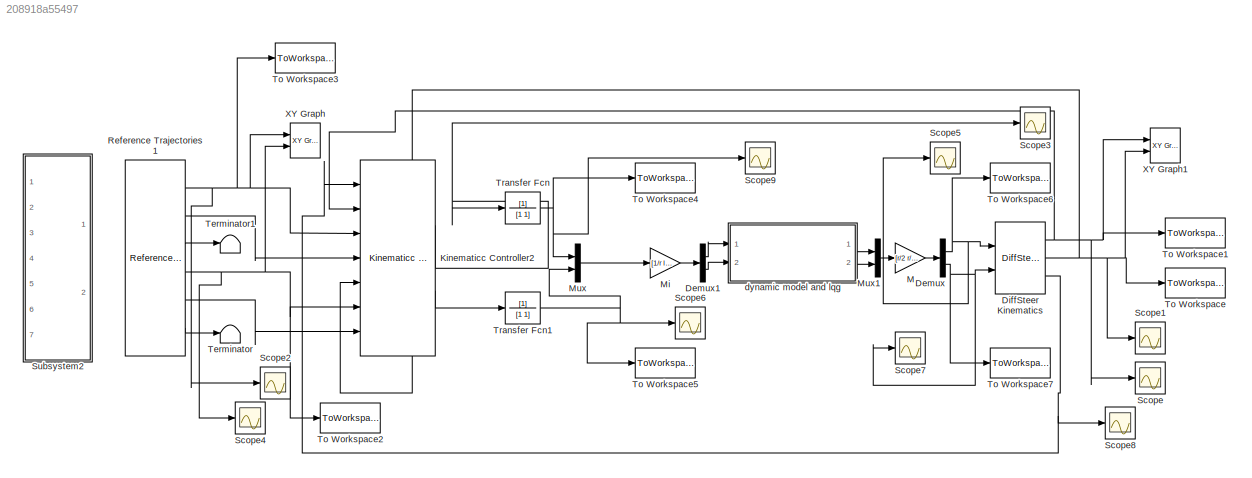
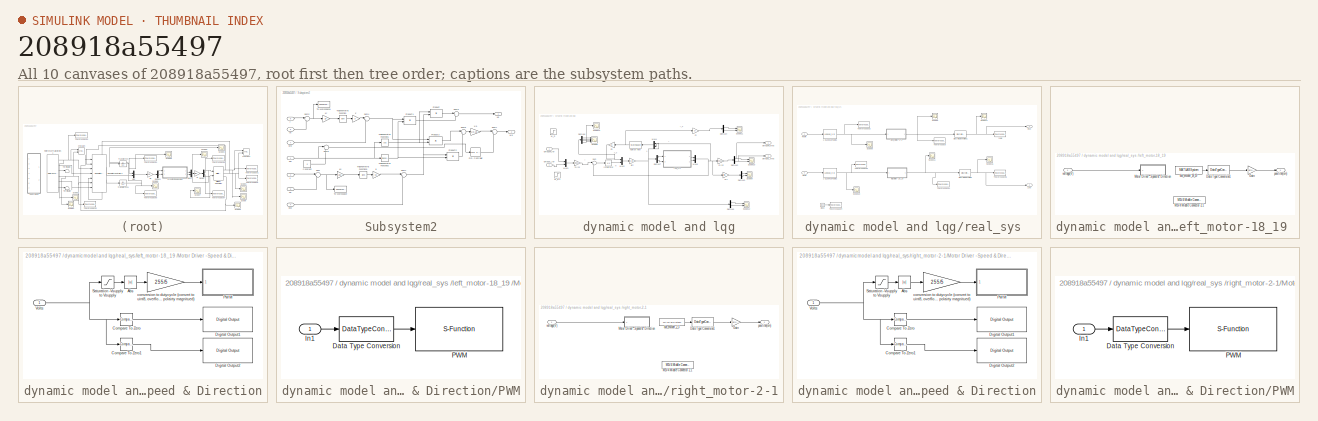
[diagram: thumbnail index - all 10 canvases of the model, root first then tree order]
MODEL slx_208918a55497
KIND model
CONFIG AbsTol = auto
CONFIG EnableMultiTasking = on
CONFIG FixedStep = 0.04
CONFIG MaxStep = auto
CONFIG MinStep = auto
CONFIG RelTol = 1e-3
CONFIG SampleTimeConstraint = Unconstrained
CONFIG Solver = FixedStepAuto
CONFIG SolverName = FixedStepAuto
CONFIG StartTime = 0.0
CONFIG StopTime = 100
BLOCK [Demux] Demux
  DisplayOption = bar
  Outputs = 2
  Ports = [1, 2]
BLOCK [Demux] Demux1
  DisplayOption = bar
  Outputs = 2
  Ports = [1, 2]
BLOCK [Reference] DiffSteer Kinematics  REF=DiffSteer_model/DiffSteer
Kinematics
  Ports = [2, 3]
  SourceBlock = DiffSteer_model/DiffSteer\nKinematics
BLOCK [Reference] Kinematicc Controller2  REF=Controllers/Kinematicc
Controller
  Ports = [7, 2]
  SourceBlock = Controllers/Kinematicc\nController
  SourceType = Kinematic Controller
BLOCK [Gain] M
  Gain = [r/2 r/2;r/l -r/l]
  Multiplication = Matrix(K*u)
  OutDataTypeStr = Inherit: Inherit via internal rule
  ParamDataTypeStr = Inherit: Inherit via internal rule
  SaturateOnIntegerOverflow = off
BLOCK [Gain] Mi
  Gain = [1/r  l/(2*r); 1/r  -l/(2*r)]
  Multiplication = Matrix(K*u)
  OutDataTypeStr = Inherit: Inherit via internal rule
  ParamDataTypeStr = Inherit: Inherit via internal rule
  SaturateOnIntegerOverflow = off
BLOCK [Mux] Mux
  DisplayOption = bar
  Inputs = 2
  Ports = [2, 1]
BLOCK [Mux] Mux1
  DisplayOption = bar
  Inputs = 2
  Ports = [2, 1]
BLOCK [Reference] Reference Trajectories1  REF=Controllers/Reference
Trajectories
  Ports = [0, 6]
  SourceBlock = Controllers/Reference\nTrajectories
  SourceType = Reference Trajectories
BLOCK [Scope] Scope
  NumInputPorts = 1
  Ports = [1]
  ScopeSpecificationString = Simulink.scopes.TimeScopeBlockCfg('CurrentConfiguration', extmgr.ConfigurationSet(extmgr.Configuration('Core','General UI',true),extmgr.Configuration('Core','Source UI',true),extmgr.Configuration('Sources','WiredSimulink',true,'DataLoggingVariableName','ScopeData9','DataLoggingLimitDataPoints',true,'DataLoggingMaxPoints','1000000000'),extmgr.Configuration('Visuals','Time Domain',true,'SerializedDi...<+1508ch>
BLOCK [Scope] Scope1
  NumInputPorts = 1
  Ports = [1]
  ScopeSpecificationString = Simulink.scopes.TimeScopeBlockCfg('CurrentConfiguration', extmgr.ConfigurationSet(extmgr.Configuration('Core','General UI',true),extmgr.Configuration('Core','Source UI',true),extmgr.Configuration('Sources','WiredSimulink',true,'DataLoggingVariableName','ScopeData2','DataLoggingLimitDataPoints',true,'DataLoggingMaxPoints','1000000000'),extmgr.Configuration('Visuals','Time Domain',true,'SerializedDi...<+1512ch>
BLOCK [Scope] Scope2
  NumInputPorts = 1
  Ports = [1]
  ScopeSpecificationString = Simulink.scopes.TimeScopeBlockCfg('CurrentConfiguration', extmgr.ConfigurationSet(extmgr.Configuration('Core','General UI',true),extmgr.Configuration('Core','Source UI',true),extmgr.Configuration('Sources','WiredSimulink',true,'DataLoggingVariableName','ScopeData3','DataLoggingLimitDataPoints',true,'DataLoggingMaxPoints','100000000000'),extmgr.Configuration('Visuals','Time Domain',true,'Serialized...<+1496ch>
BLOCK [Scope] Scope3
  NumInputPorts = 1
  Ports = [1]
  ScopeSpecificationString = Simulink.scopes.TimeScopeBlockCfg('CurrentConfiguration', extmgr.ConfigurationSet(extmgr.Configuration('Core','General UI',true),extmgr.Configuration('Core','Source UI',true),extmgr.Configuration('Sources','WiredSimulink',true,'DataLoggingVariableName','ScopeData4','DataLoggingLimitDataPoints',true,'DataLoggingMaxPoints','1000000'),extmgr.Configuration('Visuals','Time Domain',true,'SerializedDispl...<+1502ch>
BLOCK [Scope] Scope4
  NumInputPorts = 1
  Ports = [1]
  ScopeSpecificationString = Simulink.scopes.TimeScopeBlockCfg('CurrentConfiguration', extmgr.ConfigurationSet(extmgr.Configuration('Core','General UI',true),extmgr.Configuration('Core','Source UI',true),extmgr.Configuration('Sources','WiredSimulink',true,'DataLoggingVariableName','ScopeData5','DataLoggingLimitDataPoints',true,'DataLoggingMaxPoints','1000000000000'),extmgr.Configuration('Visuals','Time Domain',true,'Serialize...<+1490ch>
BLOCK [Scope] Scope5
  NumInputPorts = 1
  Ports = [1]
  ScopeSpecificationString = Simulink.scopes.TimeScopeBlockCfg('CurrentConfiguration', extmgr.ConfigurationSet(extmgr.Configuration('Core','General UI',true),extmgr.Configuration('Core','Source UI',true),extmgr.Configuration('Sources','WiredSimulink',true,'DataLoggingVariableName','ScopeData6','DataLoggingLimitDataPoints',true,'DataLoggingMaxPoints','100000000000'),extmgr.Configuration('Visuals','Time Domain',true,'Serialized...<+1490ch>
BLOCK [Scope] Scope6
  NumInputPorts = 1
  Ports = [1]
  ScopeSpecificationString = Simulink.scopes.TimeScopeBlockCfg('CurrentConfiguration', extmgr.ConfigurationSet(extmgr.Configuration('Core','General UI',true),extmgr.Configuration('Core','Source UI',true),extmgr.Configuration('Sources','WiredSimulink',true,'DataLoggingVariableName','ScopeData7','DataLoggingLimitDataPoints',true,'DataLoggingMaxPoints','100000000000'),extmgr.Configuration('Visuals','Time Domain',true,'Serialized...<+1498ch>
BLOCK [Scope] Scope7
  NumInputPorts = 1
  Ports = [1]
  ScopeSpecificationString = Simulink.scopes.TimeScopeBlockCfg('CurrentConfiguration', extmgr.ConfigurationSet(extmgr.Configuration('Core','General UI',true),extmgr.Configuration('Core','Source UI',true),extmgr.Configuration('Sources','WiredSimulink',true,'DataLoggingVariableName','ScopeData8','DataLoggingLimitDataPoints',true,'DataLoggingMaxPoints','100000000000'),extmgr.Configuration('Visuals','Time Domain',true,'Serialized...<+1493ch>
BLOCK [Scope] Scope8
  NumInputPorts = 1
  Ports = [1]
  ScopeSpecificationString = Simulink.scopes.TimeScopeBlockCfg('CurrentConfiguration', extmgr.ConfigurationSet(extmgr.Configuration('Core','General UI',true),extmgr.Configuration('Core','Source UI',true),extmgr.Configuration('Sources','WiredSimulink',true,'DataLoggingVariableName','ScopeData15','DataLoggingLimitDataPoints',true,'DataLoggingMaxPoints','1000000000'),extmgr.Configuration('Visuals','Time Domain',true,'SerializedD...<+1513ch>
BLOCK [Scope] Scope9
  NumInputPorts = 1
  Ports = [1]
  ScopeSpecificationString = Simulink.scopes.TimeScopeBlockCfg('CurrentConfiguration', extmgr.ConfigurationSet(extmgr.Configuration('Core','General UI',true),extmgr.Configuration('Core','Source UI',true),extmgr.Configuration('Sources','WiredSimulink',true,'DataLoggingVariableName','ScopeData1'),extmgr.Configuration('Visuals','Time Domain',true,'SerializedDisplays',{struct('MinYLimReal','0.09012','MaxYLimReal','0.34254','YLabe...<+1421ch>
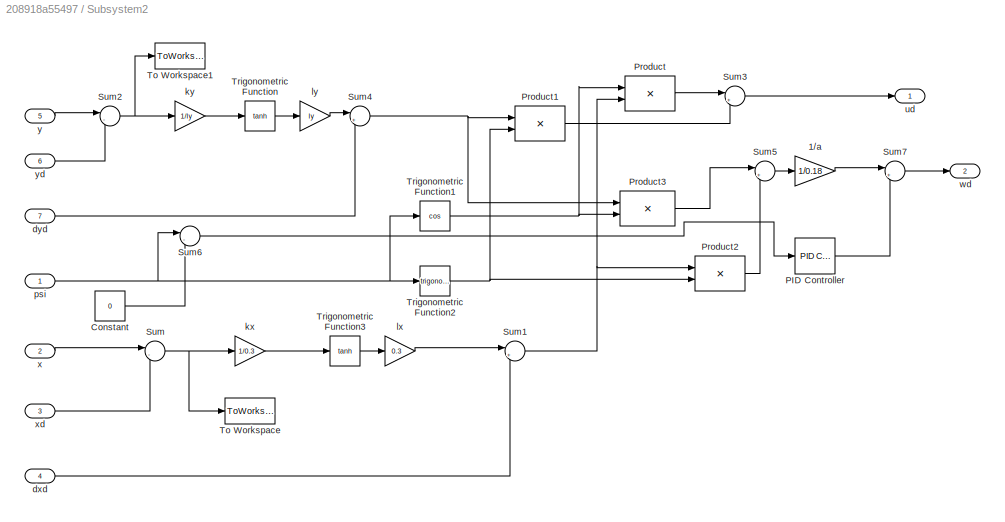
BLOCK [SubSystem] Subsystem2
  Commented = on
  Ports = [7, 2]
  RequestExecContextInheritance = off
  Variant = off
BLOCK [Gain] Subsystem2/1//a
  Gain = 1/0.18
BLOCK [Constant] Subsystem2/Constant
  Value = 0
BLOCK [Reference] Subsystem2/PID Controller  REF=simulink/Continuous/PID Controller
  Ports = [1, 1]
  SourceBlock = simulink/Continuous/PID Controller
  SourceType = PID 1dof
BLOCK [Product] Subsystem2/Product
  InputSameDT = off
  Ports = [2, 1]
  RndMeth = Floor
BLOCK [Product] Subsystem2/Product1
  InputSameDT = off
  Ports = [2, 1]
  RndMeth = Floor
BLOCK [Product] Subsystem2/Product2
  InputSameDT = off
  Ports = [2, 1]
  RndMeth = Floor
BLOCK [Product] Subsystem2/Product3
  InputSameDT = off
  Ports = [2, 1]
  RndMeth = Floor
BLOCK [Sum] Subsystem2/Sum
  IconShape = round
  InputSameDT = off
  Inputs = |-+
  OutDataTypeStr = Inherit: Inherit via internal rule
  Ports = [2, 1]
BLOCK [Sum] Subsystem2/Sum1
  IconShape = round
  InputSameDT = off
  Inputs = |++
  OutDataTypeStr = Inherit: Inherit via internal rule
  Ports = [2, 1]
BLOCK [Sum] Subsystem2/Sum2
  IconShape = round
  InputSameDT = off
  Inputs = |-+
  OutDataTypeStr = Inherit: Inherit via internal rule
  Ports = [2, 1]
BLOCK [Sum] Subsystem2/Sum3
  IconShape = round
  InputSameDT = off
  Inputs = |++
  OutDataTypeStr = Inherit: Inherit via internal rule
  Ports = [2, 1]
BLOCK [Sum] Subsystem2/Sum4
  IconShape = round
  InputSameDT = off
  Inputs = |++
  OutDataTypeStr = Inherit: Inherit via internal rule
  Ports = [2, 1]
BLOCK [Sum] Subsystem2/Sum5
  IconShape = round
  InputSameDT = off
  Inputs = |+-
  OutDataTypeStr = Inherit: Inherit via internal rule
  Ports = [2, 1]
BLOCK [Sum] Subsystem2/Sum6
  IconShape = round
  InputSameDT = off
  Inputs = |-+
  OutDataTypeStr = Inherit: Inherit via internal rule
  Ports = [2, 1]
BLOCK [Sum] Subsystem2/Sum7
  IconShape = round
  InputSameDT = off
  Inputs = |++
  OutDataTypeStr = Inherit: Inherit via internal rule
  Ports = [2, 1]
BLOCK [ToWorkspace] Subsystem2/To Workspace
  MaxDataPoints = inf
  Ports = [1]
  SampleTime = -1
  VariableName = erro_x1c
BLOCK [ToWorkspace] Subsystem2/To Workspace1
  MaxDataPoints = inf
  Ports = [1]
  SampleTime = -1
  VariableName = erro_y1c
BLOCK [Trigonometry] Subsystem2/Trigonometric Function
  Operator = tanh
  Ports = [1, 1]
BLOCK [Trigonometry] Subsystem2/Trigonometric Function1
  Operator = cos
  Ports = [1, 1]
BLOCK [Trigonometry] Subsystem2/Trigonometric Function2
  Ports = [1, 1]
BLOCK [Trigonometry] Subsystem2/Trigonometric Function3
  Operator = tanh
  Ports = [1, 1]
BLOCK [Inport] Subsystem2/dxd
  IconDisplay = Port number
  Port = 4
BLOCK [Inport] Subsystem2/dyd
  IconDisplay = Port number
  Port = 7
BLOCK [Gain] Subsystem2/kx
  Gain = 1/0.3
BLOCK [Gain] Subsystem2/ky
  Gain = 1/ly
BLOCK [Gain] Subsystem2/lx
  Gain = 0.3
BLOCK [Gain] Subsystem2/ly
  Gain = ly
BLOCK [Inport] Subsystem2/psi
  IconDisplay = Port number
BLOCK [Outport] Subsystem2/ud
  IconDisplay = Port number
BLOCK [Outport] Subsystem2/wd
  IconDisplay = Port number
  Port = 2
BLOCK [Inport] Subsystem2/x
  IconDisplay = Port number
  Port = 2
BLOCK [Inport] Subsystem2/xd
  IconDisplay = Port number
  Port = 3
BLOCK [Inport] Subsystem2/y
  IconDisplay = Port number
  Port = 5
BLOCK [Inport] Subsystem2/yd
  IconDisplay = Port number
  Port = 6
BLOCK [Terminator] Terminator
BLOCK [Terminator] Terminator1
BLOCK [ToWorkspace] To Workspace
  MaxDataPoints = inf
  Ports = [1]
  SampleTime = -1
  VariableName = y
BLOCK [ToWorkspace] To Workspace1
  MaxDataPoints = inf
  Ports = [1]
  SampleTime = -1
  VariableName = x
BLOCK [ToWorkspace] To Workspace2
  MaxDataPoints = inf
  Ports = [1]
  SampleTime = -1
  VariableName = yd
BLOCK [ToWorkspace] To Workspace3
  MaxDataPoints = inf
  Ports = [1]
  SampleTime = -1
  VariableName = xd
BLOCK [ToWorkspace] To Workspace4
  MaxDataPoints = inf
  Ports = [1]
  SampleTime = -1
  VariableName = ud
BLOCK [ToWorkspace] To Workspace5
  MaxDataPoints = inf
  Ports = [1]
  SampleTime = -1
  VariableName = wd
BLOCK [ToWorkspace] To Workspace6
  MaxDataPoints = inf
  Ports = [1]
  SampleTime = -1
  VariableName = v
BLOCK [ToWorkspace] To Workspace7
  MaxDataPoints = inf
  Ports = [1]
  SampleTime = -1
  VariableName = w
BLOCK [TransferFcn] Transfer Fcn
  Commented = through
  Denominator = [1 1]
BLOCK [TransferFcn] Transfer Fcn1
  Commented = through
  Denominator = [1 1]
BLOCK [Reference] XY Graph  REF=simulink/Sinks/XY Graph
  Commented = on
  Ports = [2]
  SourceBlock = simulink/Sinks/XY Graph
  SourceType = XY scope.
BLOCK [Reference] XY Graph1  REF=simulink/Sinks/XY Graph
  Ports = [2]
  SourceBlock = simulink/Sinks/XY Graph
  SourceType = XY scope.
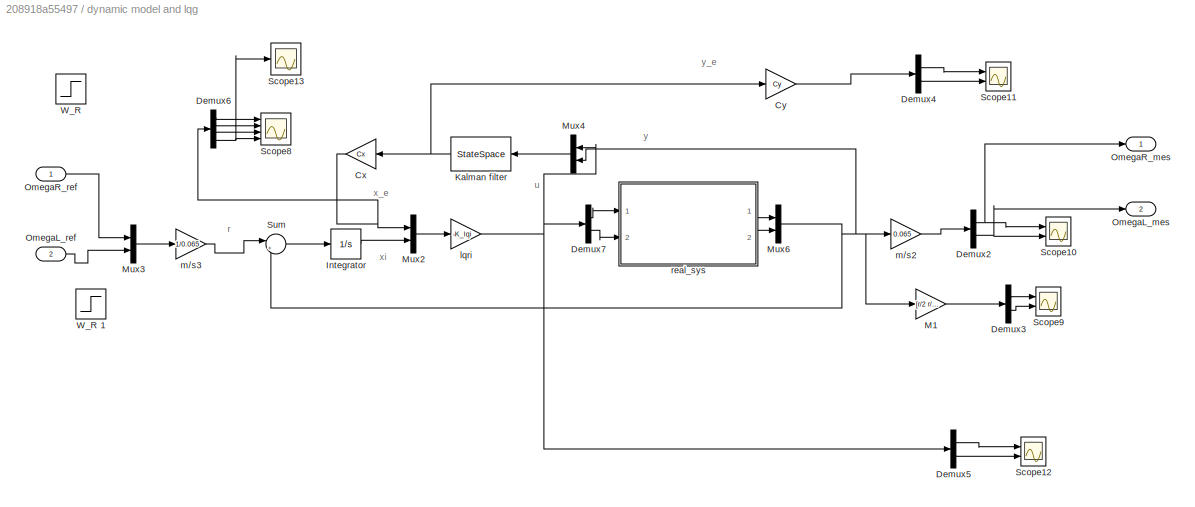
BLOCK [SubSystem] dynamic model and lqg
  Ports = [2, 2]
  RequestExecContextInheritance = off
  Variant = off
BLOCK [Gain] dynamic model and lqg/Cx
  Gain = Cx
  Multiplication = Matrix(K*u)
  OutDataTypeStr = Inherit: Inherit via internal rule
  ParamDataTypeStr = Inherit: Inherit via internal rule
  SaturateOnIntegerOverflow = off
BLOCK [Gain] dynamic model and lqg/Cy
  Gain = Cy
  Multiplication = Matrix(K*u)
  OutDataTypeStr = Inherit: Inherit via internal rule
  ParamDataTypeStr = Inherit: Inherit via internal rule
  SaturateOnIntegerOverflow = off
BLOCK [Demux] dynamic model and lqg/Demux2
  DisplayOption = bar
  Outputs = 2
  Ports = [1, 2]
BLOCK [Demux] dynamic model and lqg/Demux3
  DisplayOption = bar
  Outputs = 2
  Ports = [1, 2]
BLOCK [Demux] dynamic model and lqg/Demux4
  DisplayOption = bar
  Outputs = 2
  Ports = [1, 2]
BLOCK [Demux] dynamic model and lqg/Demux5
  DisplayOption = bar
  Outputs = 2
  Ports = [1, 2]
BLOCK [Demux] dynamic model and lqg/Demux6
  DisplayOption = bar
  Ports = [1, 4]
BLOCK [Demux] dynamic model and lqg/Demux7
  DisplayOption = bar
  Outputs = 2
  Ports = [1, 2]
BLOCK [Integrator] dynamic model and lqg/Integrator
  Ports = [1, 1]
BLOCK [StateSpace] dynamic model and lqg/Kalman filter
  A = An
  B = Bn
  C = Cn
  D = Dn
  Ports = [1, 1]
  X0 = 0
BLOCK [Gain] dynamic model and lqg/M1
  Gain = [r/2 r/2;r/l -r/l]
  Multiplication = Matrix(K*u)
  OutDataTypeStr = Inherit: Inherit via internal rule
  ParamDataTypeStr = Inherit: Inherit via internal rule
  SaturateOnIntegerOverflow = off
BLOCK [Mux] dynamic model and lqg/Mux2
  DisplayOption = bar
  Inputs = 2
  Ports = [2, 1]
BLOCK [Mux] dynamic model and lqg/Mux3
  DisplayOption = bar
  Inputs = 2
  Ports = [2, 1]
BLOCK [Mux] dynamic model and lqg/Mux4
  DisplayOption = bar
  Inputs = 2
  Ports = [2, 1]
BLOCK [Mux] dynamic model and lqg/Mux6
  DisplayOption = bar
  Inputs = 2
  Ports = [2, 1]
BLOCK [Outport] dynamic model and lqg/OmegaL_mes
  IconDisplay = Port number
  Port = 2
BLOCK [Inport] dynamic model and lqg/OmegaL_ref
  IconDisplay = Port number
  Port = 2
BLOCK [Outport] dynamic model and lqg/OmegaR_mes
  IconDisplay = Port number
BLOCK [Inport] dynamic model and lqg/OmegaR_ref
  IconDisplay = Port number
BLOCK [Scope] dynamic model and lqg/Scope10
  NumInputPorts = 2
  Ports = [2]
  ScopeSpecificationString = Simulink.scopes.TimeScopeBlockCfg('CurrentConfiguration', extmgr.ConfigurationSet(extmgr.Configuration('Core','General UI',true),extmgr.Configuration('Core','Source UI',true),extmgr.Configuration('Sources','WiredSimulink',true,'DataLoggingVariableName','ScopeData10','DataLoggingLimitDataPoints',true,'DataLoggingMaxPoints','100000000'),extmgr.Configuration('Visuals','Time Domain',true,'SerializedDi...<+1504ch>
BLOCK [Scope] dynamic model and lqg/Scope11
  NumInputPorts = 2
  Ports = [2]
  ScopeSpecificationString = Simulink.scopes.TimeScopeBlockCfg('CurrentConfiguration', extmgr.ConfigurationSet(extmgr.Configuration('Core','General UI',true),extmgr.Configuration('Core','Source UI',true),extmgr.Configuration('Sources','WiredSimulink',true,'DataLoggingLimitDataPoints',true,'DataLoggingMaxPoints','1000000','DataLoggingVariableName','ScopeData11'),extmgr.Configuration('Visuals','Time Domain',true,'SerializedDisp...<+1502ch>
BLOCK [Scope] dynamic model and lqg/Scope12
  Commented = on
  NumInputPorts = 2
  Ports = [2]
  ScopeSpecificationString = Simulink.scopes.TimeScopeBlockCfg('CurrentConfiguration', extmgr.ConfigurationSet(extmgr.Configuration('Core','General UI',true),extmgr.Configuration('Core','Source UI',true),extmgr.Configuration('Sources','WiredSimulink',true,'DataLoggingVariableName','ScopeData12','DataLoggingLimitDataPoints',true,'DataLoggingMaxPoints','1000000'),extmgr.Configuration('Visuals','Time Domain',true,'SerializedDisp...<+1504ch>
BLOCK [Scope] dynamic model and lqg/Scope13
  Commented = on
  NumInputPorts = 1
  Ports = [1]
  ScopeSpecificationString = C++SS(StrPVP('SaveName','ScopeData2'),StrPVP('SaveName','ScopeData13'),StrPVP('LimitDataPoints','on'),StrPVP('DataFormat','Array'),StrPVP('Decimation','1'),StrPVP('BlockParamSampleInput','off'))
BLOCK [Scope] dynamic model and lqg/Scope8
  NumInputPorts = 4
  Ports = [4]
  ScopeSpecificationString = Simulink.scopes.TimeScopeBlockCfg('CurrentConfiguration', extmgr.ConfigurationSet(extmgr.Configuration('Core','General UI',true),extmgr.Configuration('Core','Source UI',true),extmgr.Configuration('Sources','WiredSimulink',true,'DataLoggingVariableName','ScopeData1','DataLoggingLimitDataPoints',true,'DataLoggingMaxPoints','1000000'),extmgr.Configuration('Visuals','Time Domain',true,'SerializedDispl...<+1542ch>
BLOCK [Scope] dynamic model and lqg/Scope9
  Commented = on
  NumInputPorts = 2
  Ports = [2]
  ScopeSpecificationString = Simulink.scopes.TimeScopeBlockCfg('CurrentConfiguration', extmgr.ConfigurationSet(extmgr.Configuration('Core','General UI',true),extmgr.Configuration('Core','Source UI',true),extmgr.Configuration('Sources','WiredSimulink',true,'DataLoggingVariableName','ScopeData14','DataLoggingLimitDataPoints',true,'DataLoggingMaxPoints','1000000'),extmgr.Configuration('Visuals','Time Domain',true,'SerializedDisp...<+1517ch>
BLOCK [Sum] dynamic model and lqg/Sum
  IconShape = round
  InputSameDT = off
  Inputs = |+-
  OutDataTypeStr = Inherit: Inherit via internal rule
  Ports = [2, 1]
  SaturateOnIntegerOverflow = off
BLOCK [Step] dynamic model and lqg/W_R 
  After = 10
  Commented = on
  SampleTime = 0.02
BLOCK [Step] dynamic model and lqg/W_R 1
  After = 10
  Commented = on
  SampleTime = 0.02
BLOCK [Gain] dynamic model and lqg/lqri
  Gain = -K_lqi
  Multiplication = Matrix(K*u)
  OutDataTypeStr = Inherit: Inherit via internal rule
  ParamDataTypeStr = Inherit: Inherit via internal rule
  SaturateOnIntegerOverflow = off
BLOCK [Gain] dynamic model and lqg/m//s2
  Commented = through
  Gain = 0.065
  OutDataTypeStr = Inherit: Inherit via internal rule
  ParamDataTypeStr = Inherit: Inherit via internal rule
  SaturateOnIntegerOverflow = off
BLOCK [Gain] dynamic model and lqg/m//s3
  Commented = through
  Gain = 1/0.065
  OutDataTypeStr = Inherit: Inherit via internal rule
  ParamDataTypeStr = Inherit: Inherit via internal rule
  SaturateOnIntegerOverflow = off
BLOCK [SubSystem] dynamic model and lqg/real_sys 
  Ports = [2, 2]
  RequestExecContextInheritance = off
  Variant = off
BLOCK [Lookup_n-D] dynamic model and lqg/real_sys /1-D Lookup Table1
  BreakpointsForDimension1 = vol_r
  InternalRulePriority = Speed
  NumberOfTableDimensions = 1
  Ports = [1, 1]
  RndMeth = Simplest
  Table = u_51
BLOCK [Lookup_n-D] dynamic model and lqg/real_sys /1-D Lookup Table2
  BreakpointsForDimension1 = vol_l
  InternalRulePriority = Speed
  NumberOfTableDimensions = 1
  Ports = [1, 1]
  RndMeth = Simplest
  Table = u_51
BLOCK [Clock] dynamic model and lqg/real_sys /Clock
BLOCK [Reference] dynamic model and lqg/real_sys /Discrete Derivative  REF=simulink/Discrete/Discrete Derivative
  Ports = [1, 1]
  SourceBlock = simulink/Discrete/Discrete Derivative
  SourceType = Discrete Derivative
BLOCK [Reference] dynamic model and lqg/real_sys /Discrete Derivative1  REF=simulink/Discrete/Discrete Derivative
  Ports = [1, 1]
  SourceBlock = simulink/Discrete/Discrete Derivative
  SourceType = Discrete Derivative
BLOCK [Outport] dynamic model and lqg/real_sys /Lvel
  IconDisplay = Port number
  Port = 2
BLOCK [Outport] dynamic model and lqg/real_sys /Rvel
  IconDisplay = Port number
BLOCK [Inport] dynamic model and lqg/real_sys /RvolL 
  IconDisplay = Port number
  Port = 2
BLOCK [Inport] dynamic model and lqg/real_sys /RvolR
  IconDisplay = Port number
BLOCK [Scope] dynamic model and lqg/real_sys /Scope10
  NumInputPorts = 1
  Ports = [1]
  ScopeSpecificationString = Simulink.scopes.TimeScopeBlockCfg('CurrentConfiguration', extmgr.ConfigurationSet(extmgr.Configuration('Core','General UI',true),extmgr.Configuration('Core','Source UI',true),extmgr.Configuration('Sources','WiredSimulink',true,'DataLoggingVariableName','ScopeData8','DataLoggingLimitDataPoints',true,'DataLoggingSaveFormat','Array','DataLoggingDecimation','1','DataLoggingDecimateData',true,'DataLogg...<+1538ch>
BLOCK [Scope] dynamic model and lqg/real_sys /Scope11
  NumInputPorts = 1
  Ports = [1]
  ScopeSpecificationString = Simulink.scopes.TimeScopeBlockCfg('CurrentConfiguration', extmgr.ConfigurationSet(extmgr.Configuration('Core','General UI',true),extmgr.Configuration('Core','Source UI',true),extmgr.Configuration('Sources','WiredSimulink',true,'DataLoggingVariableName','ScopeData9','DataLoggingLimitDataPoints',true,'DataLoggingSaveFormat','Array','DataLoggingDecimation','1','DataLoggingDecimateData',true,'DataLogg...<+1553ch>
BLOCK [Scope] dynamic model and lqg/real_sys /Scope14
  NumInputPorts = 1
  Ports = [1]
  ScopeSpecificationString = Simulink.scopes.TimeScopeBlockCfg('CurrentConfiguration', extmgr.ConfigurationSet(extmgr.Configuration('Core','General UI',true),extmgr.Configuration('Core','Source UI',true),extmgr.Configuration('Sources','WiredSimulink',true,'DataLoggingVariableName','ScopeData12','DataLoggingLimitDataPoints',true,'DataLoggingMaxPoints','1000000'),extmgr.Configuration('Visuals','Time Domain',true,'SerializedDisp...<+1499ch>
BLOCK [Scope] dynamic model and lqg/real_sys /Scope15
  NumInputPorts = 1
  Ports = [1]
  ScopeSpecificationString = Simulink.scopes.TimeScopeBlockCfg('CurrentConfiguration', extmgr.ConfigurationSet(extmgr.Configuration('Core','General UI',true),extmgr.Configuration('Core','Source UI',true),extmgr.Configuration('Sources','WiredSimulink',true,'DataLoggingVariableName','ScopeData13','DataLoggingLimitDataPoints',true,'DataLoggingMaxPoints','1000000'),extmgr.Configuration('Visuals','Time Domain',true,'SerializedDisp...<+1471ch>
BLOCK [Scope] dynamic model and lqg/real_sys /Scope8
  NumInputPorts = 1
  Ports = [1]
  ScopeSpecificationString = Simulink.scopes.TimeScopeBlockCfg('CurrentConfiguration', extmgr.ConfigurationSet(extmgr.Configuration('Core','General UI',true),extmgr.Configuration('Core','Source UI',true),extmgr.Configuration('Sources','WiredSimulink',true,'DataLoggingVariableName','ScopeData16','DataLoggingLimitDataPoints',true,'DataLoggingSaveFormat','Array','DataLoggingDecimation','1','DataLoggingDecimateData',true,'DataLog...<+1583ch>
BLOCK [Scope] dynamic model and lqg/real_sys /Scope9
  NumInputPorts = 1
  Ports = [1]
  ScopeSpecificationString = Simulink.scopes.TimeScopeBlockCfg('CurrentConfiguration', extmgr.ConfigurationSet(extmgr.Configuration('Core','General UI',true),extmgr.Configuration('Core','Source UI',true),extmgr.Configuration('Sources','WiredSimulink',true,'DataLoggingVariableName','ScopeData17','DataLoggingLimitDataPoints',true,'DataLoggingMaxPoints','1000000'),extmgr.Configuration('Visuals','Time Domain',true,'SerializedDisp...<+1504ch>
BLOCK [ToWorkspace] dynamic model and lqg/real_sys /To Workspace
  FixptAsFi = on
  MaxDataPoints = inf
  Ports = [1]
  SampleTime = -1
  Save2DSignal = 2-D array (concatenate along first dimension)
  VariableName = pos
BLOCK [ToWorkspace] dynamic model and lqg/real_sys /To Workspace1
  FixptAsFi = on
  MaxDataPoints = inf
  Ports = [1]
  SampleTime = -1
  Save2DSignal = 2-D array (concatenate along first dimension)
  VariableName = pos1
BLOCK [ToWorkspace] dynamic model and lqg/real_sys /To Workspace2
  FixptAsFi = on
  MaxDataPoints = inf
  Ports = [1]
  SampleTime = -1
  Save2DSignal = 2-D array (concatenate along first dimension)
  VariableName = u
BLOCK [ToWorkspace] dynamic model and lqg/real_sys /To Workspace3
  FixptAsFi = on
  MaxDataPoints = inf
  Ports = [1]
  SampleTime = -1
  Save2DSignal = 2-D array (concatenate along first dimension)
  VariableName = u1
BLOCK [ToWorkspace] dynamic model and lqg/real_sys /To Workspace4
  FixptAsFi = on
  MaxDataPoints = inf
  Ports = [1]
  SampleTime = -1
  Save2DSignal = 2-D array (concatenate along first dimension)
  VariableName = t
BLOCK [ToWorkspace] dynamic model and lqg/real_sys /To Workspace6
  FixptAsFi = on
  MaxDataPoints = inf
  Ports = [1]
  SampleTime = -1
  Save2DSignal = 2-D array (concatenate along first dimension)
  VariableName = vel1
BLOCK [SubSystem] dynamic model and lqg/real_sys /left_motor-18_19 
  Ports = [1, 1]
  RequestExecContextInheritance = off
  Variant = off
BLOCK [DataTypeConversion] dynamic model and lqg/real_sys /left_motor-18_19 /Data Type Conversion1
  RndMeth = Floor
  SaturateOnIntegerOverflow = off
BLOCK [Gain] dynamic model and lqg/real_sys /left_motor-18_19 /Gain
  Gain = (pi*2)/(2300)
  OutDataTypeStr = Inherit: Inherit via internal rule
  ParamDataTypeStr = Inherit: Inherit via internal rule
  SaturateOnIntegerOverflow = off
BLOCK [Reference] dynamic model and lqg/real_sys /left_motor-18_19 /M1V4 Middle Connector 2,1  REF=MinSegLibrary_M1V4/M1V4 Middle Connector 2,3
  Commented = on
  Ports = [0, 1]
  SourceBlock = MinSegLibrary_M1V4/M1V4 Middle Connector 2,3
  SourceType = Encoder_arduino
BLOCK [SubSystem] dynamic model and lqg/real_sys /left_motor-18_19 /Motor Driver -Speed & Direction
  AncestorBlock = RASPlib/Motor Driver -Speed & Direction
  Ports = [1]
  RequestExecContextInheritance = off
  Variant = off
BLOCK [Abs] dynamic model and lqg/real_sys /left_motor-18_19 /Motor Driver -Speed & Direction/Abs
  SaturateOnIntegerOverflow = off
BLOCK [Reference] dynamic model and lqg/real_sys /left_motor-18_19 /Motor Driver -Speed & Direction/Compare To Zero  REF=simulink/Logic and Bit
Operations/Compare
To Zero
  Ports = [1, 1]
  SourceBlock = simulink/Logic and Bit\nOperations/Compare\nTo Zero
  SourceType = Compare To Zero
BLOCK [Reference] dynamic model and lqg/real_sys /left_motor-18_19 /Motor Driver -Speed & Direction/Compare To Zero1  REF=simulink/Logic and Bit
Operations/Compare
To Zero
  Ports = [1, 1]
  SourceBlock = simulink/Logic and Bit\nOperations/Compare\nTo Zero
  SourceType = Compare To Zero
BLOCK [Reference] dynamic model and lqg/real_sys /left_motor-18_19 /Motor Driver -Speed & Direction/Digital Output1  REF=arduinolib/Digital Output
  Ports = [1]
  SourceBlock = arduinolib/Digital Output
  SourceType = Arduino Digital Output
BLOCK [Reference] dynamic model and lqg/real_sys /left_motor-18_19 /Motor Driver -Speed & Direction/Digital Output2  REF=arduinolib/Digital Output
  Ports = [1]
  SourceBlock = arduinolib/Digital Output
  SourceType = Arduino Digital Output
BLOCK [SubSystem] dynamic model and lqg/real_sys /left_motor-18_19 /Motor Driver -Speed & Direction/PWM
  AncestorBlock = arduinolib/PWM
  InitFcn = codertarget.arduinobase.blocks.arduinoBlockInitFcnCallback(gcbh);
  Ports = [1]
  RequestExecContextInheritance = off
  Variant = off
BLOCK [DataTypeConversion] dynamic model and lqg/real_sys /left_motor-18_19 /Motor Driver -Speed & Direction/PWM/Data Type Conversion
  OutDataTypeStr = uint8
  RndMeth = Floor
BLOCK [Inport] dynamic model and lqg/real_sys /left_motor-18_19 /Motor Driver -Speed & Direction/PWM/In1
  IconDisplay = Port number
BLOCK [S-Function] dynamic model and lqg/real_sys /left_motor-18_19 /Motor Driver -Speed & Direction/PWM/PWM
  EnableBusSupport = off
  FunctionName = arduinoanalogoutput_sfcn
  Parameters = pinNumber
  Ports = [1]
  SFcnIsStateOwnerBlock = off
  SFunctionDeploymentMode = off
BLOCK [Saturate] dynamic model and lqg/real_sys /left_motor-18_19 /Motor Driver -Speed & Direction/Saturation -Vsupply to Vsupply
  InputPortMap = u0
  LowerLimit = -5
  OutDataTypeStr = single
  Ports = [1, 1]
  UpperLimit = 5
BLOCK [Inport] dynamic model and lqg/real_sys /left_motor-18_19 /Motor Driver -Speed & Direction/Volts
  IconDisplay = Port number
BLOCK [Gain] dynamic model and lqg/real_sys /left_motor-18_19 /Motor Driver -Speed & Direction/conversion to dutycycle (convert to uint8, overflow will provide reverse polairty magnitued)
  Gain = 255/5
  OutDataTypeStr = uint8
  ParamDataTypeStr = Inherit: Inherit via internal rule
  SaturateOnIntegerOverflow = off
BLOCK [MATLABSystem] dynamic model and lqg/real_sys /left_motor-18_19 /due_encoder_18_19 
  Encoder = 1
  MaskDisplay = disp('soEncoder');\nport_label('output',1,'y');
  MaskType = Encoder_arduino_Due_18_19
  PWMFSelect = 1
  PWMTimer = -1
  PinA = 18
  PinB = 19
  Ports = [0, 1]
  SampleTime = -1
  System = Encoder_arduino_Due_18_19
BLOCK [Outport] dynamic model and lqg/real_sys /left_motor-18_19 /position(cm)
  IconDisplay = Port number
BLOCK [Inport] dynamic model and lqg/real_sys /left_motor-18_19 /voltage(V)
  IconDisplay = Port number
BLOCK [ToWorkspace] dynamic model and lqg/real_sys /rad//s
  FixptAsFi = on
  MaxDataPoints = inf
  Ports = [1]
  SampleTime = -1
  Save2DSignal = 2-D array (concatenate along first dimension)
  VariableName = vel
BLOCK [SubSystem] dynamic model and lqg/real_sys /right_motor-2-1
  Ports = [1, 1]
  RequestExecContextInheritance = off
  Variant = off
BLOCK [DataTypeConversion] dynamic model and lqg/real_sys /right_motor-2-1/Data Type Conversion1
  RndMeth = Floor
  SaturateOnIntegerOverflow = off
BLOCK [Gain] dynamic model and lqg/real_sys /right_motor-2-1/Gain
  Gain = (pi*2)/(2300)
  OutDataTypeStr = Inherit: Inherit via internal rule
  ParamDataTypeStr = Inherit: Inherit via internal rule
  SaturateOnIntegerOverflow = off
BLOCK [Reference] dynamic model and lqg/real_sys /right_motor-2-1/M1V4 Middle Connector 2,1  REF=MinSegLibrary_M1V4/M1V4 Middle Connector 2,3
  Commented = on
  Ports = [0, 1]
  SourceBlock = MinSegLibrary_M1V4/M1V4 Middle Connector 2,3
  SourceType = Encoder_arduino
BLOCK [SubSystem] dynamic model and lqg/real_sys /right_motor-2-1/Motor Driver -Speed & Direction
  AncestorBlock = RASPlib/Motor Driver -Speed & Direction
  Ports = [1]
  RequestExecContextInheritance = off
  Variant = off
BLOCK [Abs] dynamic model and lqg/real_sys /right_motor-2-1/Motor Driver -Speed & Direction/Abs
  SaturateOnIntegerOverflow = off
BLOCK [Reference] dynamic model and lqg/real_sys /right_motor-2-1/Motor Driver -Speed & Direction/Compare To Zero  REF=simulink/Logic and Bit
Operations/Compare
To Zero
  Ports = [1, 1]
  SourceBlock = simulink/Logic and Bit\nOperations/Compare\nTo Zero
  SourceType = Compare To Zero
BLOCK [Reference] dynamic model and lqg/real_sys /right_motor-2-1/Motor Driver -Speed & Direction/Compare To Zero1  REF=simulink/Logic and Bit
Operations/Compare
To Zero
  Ports = [1, 1]
  SourceBlock = simulink/Logic and Bit\nOperations/Compare\nTo Zero
  SourceType = Compare To Zero
BLOCK [Reference] dynamic model and lqg/real_sys /right_motor-2-1/Motor Driver -Speed & Direction/Digital Output1  REF=arduinolib/Digital Output
  Ports = [1]
  SourceBlock = arduinolib/Digital Output
  SourceType = Arduino Digital Output
BLOCK [Reference] dynamic model and lqg/real_sys /right_motor-2-1/Motor Driver -Speed & Direction/Digital Output2  REF=arduinolib/Digital Output
  Ports = [1]
  SourceBlock = arduinolib/Digital Output
  SourceType = Arduino Digital Output
BLOCK [SubSystem] dynamic model and lqg/real_sys /right_motor-2-1/Motor Driver -Speed & Direction/PWM
  AncestorBlock = arduinolib/PWM
  InitFcn = codertarget.arduinobase.blocks.arduinoBlockInitFcnCallback(gcbh);
  Ports = [1]
  RequestExecContextInheritance = off
  Variant = off
BLOCK [DataTypeConversion] dynamic model and lqg/real_sys /right_motor-2-1/Motor Driver -Speed & Direction/PWM/Data Type Conversion
  OutDataTypeStr = uint8
  RndMeth = Floor
BLOCK [Inport] dynamic model and lqg/real_sys /right_motor-2-1/Motor Driver -Speed & Direction/PWM/In1
  IconDisplay = Port number
BLOCK [S-Function] dynamic model and lqg/real_sys /right_motor-2-1/Motor Driver -Speed & Direction/PWM/PWM
  EnableBusSupport = off
  FunctionName = arduinoanalogoutput_sfcn
  Parameters = pinNumber
  Ports = [1]
  SFcnIsStateOwnerBlock = off
  SFunctionDeploymentMode = off
BLOCK [Saturate] dynamic model and lqg/real_sys /right_motor-2-1/Motor Driver -Speed & Direction/Saturation -Vsupply to Vsupply
  InputPortMap = u0
  LowerLimit = -5
  OutDataTypeStr = single
  Ports = [1, 1]
  UpperLimit = 5
BLOCK [Inport] dynamic model and lqg/real_sys /right_motor-2-1/Motor Driver -Speed & Direction/Volts
  IconDisplay = Port number
BLOCK [Gain] dynamic model and lqg/real_sys /right_motor-2-1/Motor Driver -Speed & Direction/conversion to dutycycle (convert to uint8, overflow will provide reverse polairty magnitued)
  Gain = 255/5
  OutDataTypeStr = uint8
  ParamDataTypeStr = Inherit: Inherit via internal rule
  SaturateOnIntegerOverflow = off
BLOCK [MATLABSystem] dynamic model and lqg/real_sys /right_motor-2-1/due_encoder_2_3
  Encoder = 0
  MaskDisplay = disp('soEncoder');\nport_label('output',1,'y');
  MaskType = Encoder_arduino_Due_2_3
  PWMFSelect = 1
  PWMTimer = -1
  PinA = 2
  PinB = 3
  Ports = [0, 1]
  SampleTime = -1
  System = Encoder_arduino_Due_2_3
BLOCK [Outport] dynamic model and lqg/real_sys /right_motor-2-1/position(cm)
  IconDisplay = Port number
BLOCK [Inport] dynamic model and lqg/real_sys /right_motor-2-1/voltage(V)
  IconDisplay = Port number
ANNOTATION dynamic model and lqg: r
ANNOTATION dynamic model and lqg: u
ANNOTATION dynamic model and lqg: x_e
ANNOTATION dynamic model and lqg: xi
ANNOTATION dynamic model and lqg: y
ANNOTATION dynamic model and lqg: y_e
LINE Demux1:1 -> dynamic model and lqg:1
LINE Demux1:2 -> dynamic model and lqg:2
NET Demux:1 -> DiffSteer Kinematics:1, Scope5:1, To Workspace6:1
NET Demux:2 -> DiffSteer Kinematics:2, Scope7:1, To Workspace7:1
NET DiffSteer Kinematics:1 -> Kinematicc Controller2:2, Scope:1, To Workspace1:1, XY Graph1:1
NET DiffSteer Kinematics:2 -> Kinematicc Controller2:5, Scope1:1, To Workspace:1, XY Graph1:2
NET DiffSteer Kinematics:3 -> Kinematicc Controller2:1, Scope8:1
NET Kinematicc Controller2:1 -> Scope3:1, Transfer Fcn:1
LINE Kinematicc Controller2:2 -> Transfer Fcn1:1
LINE M:1 -> Demux:1
LINE Mi:1 -> Demux1:1
LINE Mux1:1 -> M:1
LINE Mux:1 -> Mi:1
NET Reference Trajectories1:1 -> Kinematicc Controller2:3, Scope2:1, To Workspace3:1, XY Graph:1
LINE Reference Trajectories1:2 -> Kinematicc Controller2:4
LINE Reference Trajectories1:3 -> Terminator1:1
NET Reference Trajectories1:4 -> Kinematicc Controller2:6, Scope4:1, To Workspace2:1, XY Graph:2
LINE Reference Trajectories1:5 -> Kinematicc Controller2:7
LINE Reference Trajectories1:6 -> Terminator:1
LINE Subsystem2/1//a:1 -> Subsystem2/Sum7:1
LINE Subsystem2/Constant:1 -> Subsystem2/Sum6:2
LINE Subsystem2/PID Controller:1 -> Subsystem2/Sum7:2
LINE Subsystem2/Product1:1 -> Subsystem2/Sum3:2
LINE Subsystem2/Product2:1 -> Subsystem2/Sum5:2
LINE Subsystem2/Product3:1 -> Subsystem2/Sum5:1
LINE Subsystem2/Product:1 -> Subsystem2/Sum3:1
NET Subsystem2/Sum1:1 -> Subsystem2/Product2:1, Subsystem2/Product:2
NET Subsystem2/Sum2:1 -> Subsystem2/To Workspace1:1, Subsystem2/ky:1
LINE Subsystem2/Sum3:1 -> Subsystem2/ud:1
NET Subsystem2/Sum4:1 -> Subsystem2/Product1:1, Subsystem2/Product3:1
LINE Subsystem2/Sum5:1 -> Subsystem2/1//a:1
LINE Subsystem2/Sum6:1 -> Subsystem2/PID Controller:1
LINE Subsystem2/Sum7:1 -> Subsystem2/wd:1
NET Subsystem2/Sum:1 -> Subsystem2/To Workspace:1, Subsystem2/kx:1
NET Subsystem2/Trigonometric Function1:1 -> Subsystem2/Product3:2, Subsystem2/Product:1
NET Subsystem2/Trigonometric Function2:1 -> Subsystem2/Product1:2, Subsystem2/Product2:2
LINE Subsystem2/Trigonometric Function3:1 -> Subsystem2/lx:1
LINE Subsystem2/Trigonometric Function:1 -> Subsystem2/ly:1
LINE Subsystem2/dxd:1 -> Subsystem2/Sum1:2
LINE Subsystem2/dyd:1 -> Subsystem2/Sum4:2
LINE Subsystem2/kx:1 -> Subsystem2/Trigonometric Function3:1
LINE Subsystem2/ky:1 -> Subsystem2/Trigonometric Function:1
LINE Subsystem2/lx:1 -> Subsystem2/Sum1:1
LINE Subsystem2/ly:1 -> Subsystem2/Sum4:1
NET Subsystem2/psi:1 -> Subsystem2/Sum6:1, Subsystem2/Trigonometric Function1:1, Subsystem2/Trigonometric Function2:1
LINE Subsystem2/x:1 -> Subsystem2/Sum:1
LINE Subsystem2/xd:1 -> Subsystem2/Sum:2
LINE Subsystem2/y:1 -> Subsystem2/Sum2:1
LINE Subsystem2/yd:1 -> Subsystem2/Sum2:2
NET Transfer Fcn1:1 -> Mux:2, Scope6:1, To Workspace5:1
NET Transfer Fcn:1 -> Mux:1, Scope9:1, To Workspace4:1
NET dynamic model and lqg/Cx:1 -> dynamic model and lqg/Demux6:1, dynamic model and lqg/Mux2:1
LINE dynamic model and lqg/Cy:1 -> dynamic model and lqg/Demux4:1
NET dynamic model and lqg/Demux2:1 -> dynamic model and lqg/OmegaR_mes:1, dynamic model and lqg/Scope10:1
NET dynamic model and lqg/Demux2:2 -> dynamic model and lqg/OmegaL_mes:1, dynamic model and lqg/Scope10:2
LINE dynamic model and lqg/Demux3:1 -> dynamic model and lqg/Scope9:1
LINE dynamic model and lqg/Demux3:2 -> dynamic model and lqg/Scope9:2
LINE dynamic model and lqg/Demux4:1 -> dynamic model and lqg/Scope11:1
LINE dynamic model and lqg/Demux4:2 -> dynamic model and lqg/Scope11:2
LINE dynamic model and lqg/Demux5:1 -> dynamic model and lqg/Scope12:1
LINE dynamic model and lqg/Demux5:2 -> dynamic model and lqg/Scope12:2
LINE dynamic model and lqg/Demux6:1 -> dynamic model and lqg/Scope8:1
LINE dynamic model and lqg/Demux6:2 -> dynamic model and lqg/Scope8:2
LINE dynamic model and lqg/Demux6:3 -> dynamic model and lqg/Scope8:3
NET dynamic model and lqg/Demux6:4 -> dynamic model and lqg/Scope13:1, dynamic model and lqg/Scope8:4
LINE dynamic model and lqg/Demux7:1 -> dynamic model and lqg/real_sys :1
LINE dynamic model and lqg/Demux7:2 -> dynamic model and lqg/real_sys :2
LINE dynamic model and lqg/Integrator:1 -> dynamic model and lqg/Mux2:2
NET dynamic model and lqg/Kalman filter:1 -> dynamic model and lqg/Cx:1, dynamic model and lqg/Cy:1
LINE dynamic model and lqg/M1:1 -> dynamic model and lqg/Demux3:1
LINE dynamic model and lqg/Mux2:1 -> dynamic model and lqg/lqri:1
LINE dynamic model and lqg/Mux3:1 -> dynamic model and lqg/m//s3:1
LINE dynamic model and lqg/Mux4:1 -> dynamic model and lqg/Kalman filter:1
NET dynamic model and lqg/Mux6:1 -> dynamic model and lqg/M1:1, dynamic model and lqg/Mux4:2, dynamic model and lqg/Sum:2, dynamic model and lqg/m//s2:1
LINE dynamic model and lqg/OmegaL_ref:1 -> dynamic model and lqg/Mux3:2
LINE dynamic model and lqg/OmegaR_ref:1 -> dynamic model and lqg/Mux3:1
LINE dynamic model and lqg/Sum:1 -> dynamic model and lqg/Integrator:1
NET dynamic model and lqg/lqri:1 -> dynamic model and lqg/Demux5:1, dynamic model and lqg/Demux7:1, dynamic model and lqg/Mux4:1
LINE dynamic model and lqg/m//s2:1 -> dynamic model and lqg/Demux2:1
LINE dynamic model and lqg/m//s3:1 -> dynamic model and lqg/Sum:1
NET dynamic model and lqg/real_sys /1-D Lookup Table1:1 -> dynamic model and lqg/real_sys /Scope8:1, dynamic model and lqg/real_sys /To Workspace2:1, dynamic model and lqg/real_sys /right_motor-2-1:1
NET dynamic model and lqg/real_sys /1-D Lookup Table2:1 -> dynamic model and lqg/real_sys /Scope10:1, dynamic model and lqg/real_sys /To Workspace3:1, dynamic model and lqg/real_sys /left_motor-18_19 :1
LINE dynamic model and lqg/real_sys /Clock:1 -> dynamic model and lqg/real_sys /To Workspace4:1
NET dynamic model and lqg/real_sys /Discrete Derivative1:1 -> dynamic model and lqg/real_sys /Rvel:1, dynamic model and lqg/real_sys /Scope14:1, dynamic model and lqg/real_sys /rad//s:1
NET dynamic model and lqg/real_sys /Discrete Derivative:1 -> dynamic model and lqg/real_sys /Lvel:1, dynamic model and lqg/real_sys /Scope15:1, dynamic model and lqg/real_sys /To Workspace6:1
LINE dynamic model and lqg/real_sys /RvolL :1 -> dynamic model and lqg/real_sys /1-D Lookup Table2:1
LINE dynamic model and lqg/real_sys /RvolR:1 -> dynamic model and lqg/real_sys /1-D Lookup Table1:1
LINE dynamic model and lqg/real_sys /left_motor-18_19 /Data Type Conversion1:1 -> dynamic model and lqg/real_sys /left_motor-18_19 /Gain:1
LINE dynamic model and lqg/real_sys /left_motor-18_19 /Gain:1 -> dynamic model and lqg/real_sys /left_motor-18_19 /position(cm):1
LINE dynamic model and lqg/real_sys /left_motor-18_19 /due_encoder_18_19 :1 -> dynamic model and lqg/real_sys /left_motor-18_19 /Data Type Conversion1:1
LINE dynamic model and lqg/real_sys /left_motor-18_19 /voltage(V):1 -> dynamic model and lqg/real_sys /left_motor-18_19 /Motor Driver -Speed & Direction:1
NET dynamic model and lqg/real_sys /left_motor-18_19 :1 -> dynamic model and lqg/real_sys /Discrete Derivative:1, dynamic model and lqg/real_sys /Scope11:1, dynamic model and lqg/real_sys /To Workspace1:1
LINE dynamic model and lqg/real_sys /right_motor-2-1/Data Type Conversion1:1 -> dynamic model and lqg/real_sys /right_motor-2-1/Gain:1
LINE dynamic model and lqg/real_sys /right_motor-2-1/Gain:1 -> dynamic model and lqg/real_sys /right_motor-2-1/position(cm):1
LINE dynamic model and lqg/real_sys /right_motor-2-1/due_encoder_2_3:1 -> dynamic model and lqg/real_sys /right_motor-2-1/Data Type Conversion1:1
LINE dynamic model and lqg/real_sys /right_motor-2-1/voltage(V):1 -> dynamic model and lqg/real_sys /right_motor-2-1/Motor Driver -Speed & Direction:1
NET dynamic model and lqg/real_sys /right_motor-2-1:1 -> dynamic model and lqg/real_sys /Discrete Derivative1:1, dynamic model and lqg/real_sys /Scope9:1, dynamic model and lqg/real_sys /To Workspace:1
LINE dynamic model and lqg/real_sys :1 -> dynamic model and lqg/Mux6:1
LINE dynamic model and lqg/real_sys :2 -> dynamic model and lqg/Mux6:2
LINE dynamic model and lqg:1 -> Mux1:1
LINE dynamic model and lqg:2 -> Mux1:2
note: NET lines group one-source signal fan-out (src -> all destinations, sorted); 1:1 wires keep LINE
